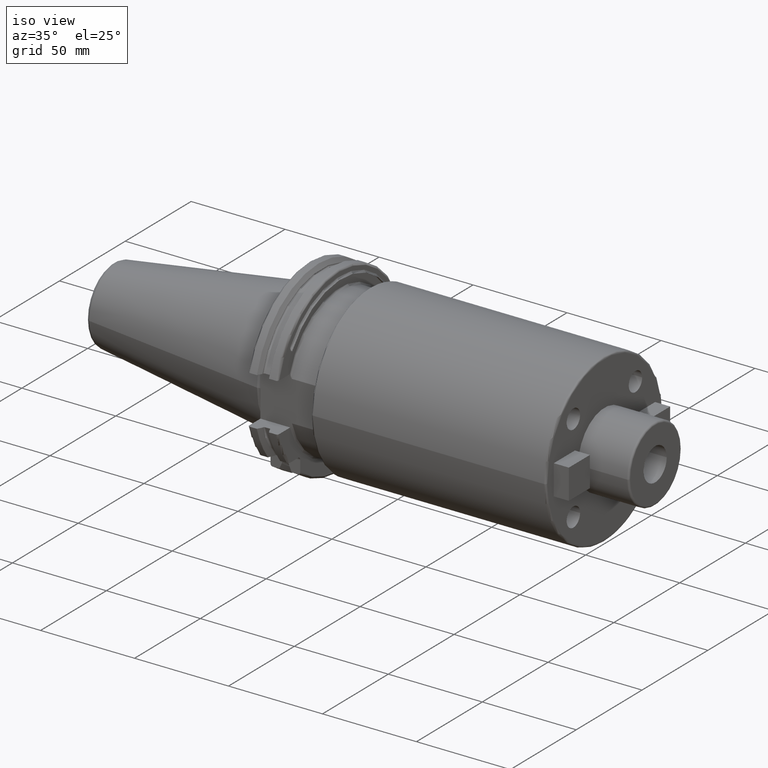
[diagram: clean part render]
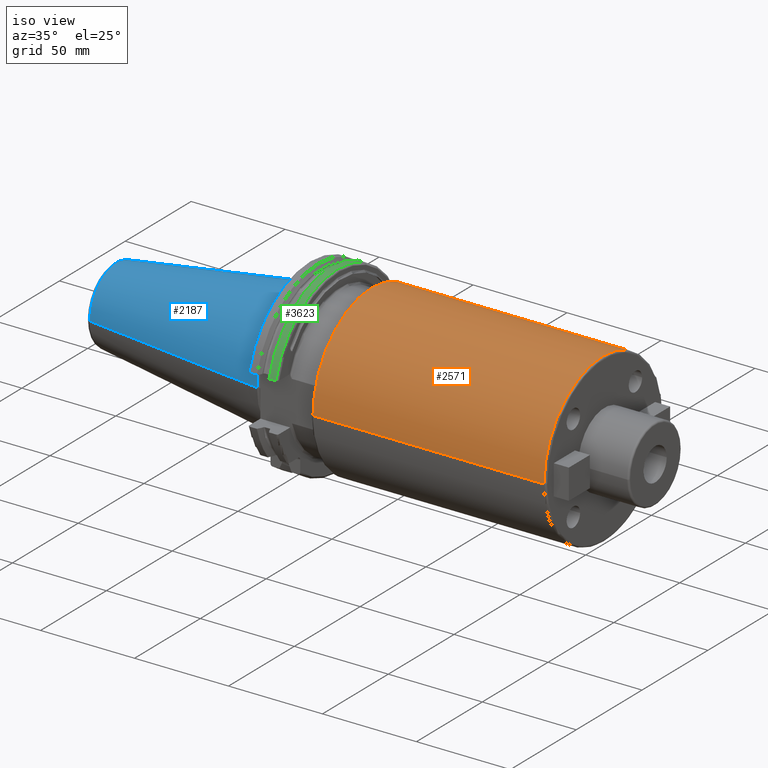
[diagram: same view with three faces highlighted in distinct colors, each labeled with its STEP entity id]
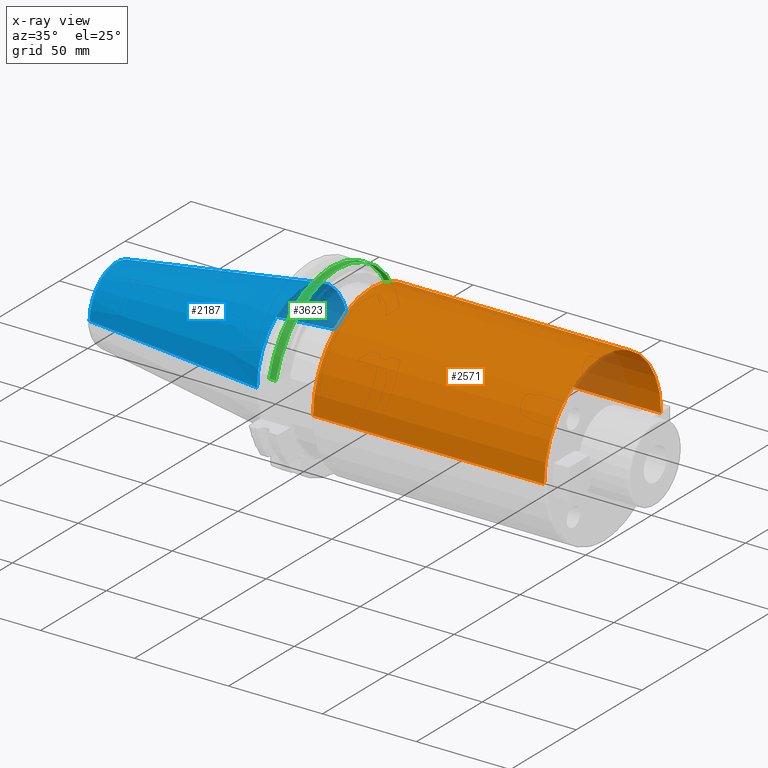
[diagram: x-ray of the same camera — body ghosted, the three highlighted faces saturated]
A machine part, iso view with three faces highlighted in distinct colors.
The next image is the same camera in x-ray (body ghosted, the three faces saturated) — at least one of them is partly hidden behind the body in this view.
Their STEP definitions:

[orange] entity #2571 — the highlighted cylindrical surface (partial cylindrical patch) has radius 44.5 mm, axis along (1, 0, 0).
#407=DIRECTION('',(-1.E0,0.E0,0.E0));
#408=VECTOR('',#407,1.2295E2);
#409=CARTESIAN_POINT('',(1.59E2,-4.45E1,3.168365843636E-13));
#410=LINE('',#409,#408);
#416=DIRECTION('',(-1.E0,0.E0,0.E0));
#417=VECTOR('',#416,1.2295E2);
#418=CARTESIAN_POINT('',(1.59E2,4.45E1,-3.379609737659E-13));
#419=LINE('',#418,#417);
#420=CARTESIAN_POINT('',(3.605E1,0.E0,0.E0));
#421=DIRECTION('',(1.E0,0.E0,0.E0));
#422=DIRECTION('',(0.E0,1.E0,0.E0));
#423=AXIS2_PLACEMENT_3D('',#420,#421,#422);
#425=CARTESIAN_POINT('',(1.59E2,0.E0,0.E0));
#426=DIRECTION('',(-1.E0,0.E0,0.E0));
#427=DIRECTION('',(0.E0,-1.E0,0.E0));
#428=AXIS2_PLACEMENT_3D('',#425,#426,#427);
#1977=CARTESIAN_POINT('',(1.59E2,4.45E1,0.E0));
#1978=CARTESIAN_POINT('',(1.59E2,-4.45E1,-1.089935651241E-14));
#1979=VERTEX_POINT('',#1977);
#1980=VERTEX_POINT('',#1978);
#2079=CARTESIAN_POINT('',(3.605E1,-4.45E1,-1.089935651241E-14));
#2080=CARTESIAN_POINT('',(3.605E1,4.45E1,0.E0));
#2081=VERTEX_POINT('',#2079);
#2082=VERTEX_POINT('',#2080);
#2558=CARTESIAN_POINT('',(1.06525E1,0.E0,0.E0));
#2559=DIRECTION('',(1.E0,0.E0,0.E0));
#2560=DIRECTION('',(0.E0,-1.E0,0.E0));
#2561=AXIS2_PLACEMENT_3D('',#2558,#2559,#2560);
#2562=CYLINDRICAL_SURFACE('',#2561,4.45E1);
#2564=ORIENTED_EDGE('',*,*,#2563,.F.);
#2565=ORIENTED_EDGE('',*,*,#2553,.F.);
#2567=ORIENTED_EDGE('',*,*,#2566,.F.);
#2568=ORIENTED_EDGE('',*,*,#2549,.T.);
#2569=EDGE_LOOP('',(#2564,#2565,#2567,#2568));
#2570=FACE_OUTER_BOUND('',#2569,.F.);
#2571=ADVANCED_FACE('',(#2570),#2562,.T.);
#424=CIRCLE('',#423,4.45E1);
#429=CIRCLE('',#428,4.45E1);
#2549=EDGE_CURVE('',#1980,#2081,#410,.T.);
#2553=EDGE_CURVE('',#1979,#2082,#419,.T.);
#2563=EDGE_CURVE('',#2082,#2081,#424,.T.);
#2566=EDGE_CURVE('',#1980,#1979,#429,.T.);

[blue] entity #2187 — the highlighted conical surface has half-angle 8.298 deg.
#37=CARTESIAN_POINT('',(-9.967471700563E1,0.E0,0.E0));
#38=DIRECTION('',(1.E0,0.E0,0.E0));
#39=DIRECTION('',(0.E0,1.E0,0.E0));
#40=AXIS2_PLACEMENT_3D('',#37,#38,#39);
#42=CARTESIAN_POINT('',(-4.896823332305E-1,0.E0,0.E0));
#43=DIRECTION('',(1.E0,0.E0,0.E0));
#44=DIRECTION('',(0.E0,1.E0,0.E0));
#45=AXIS2_PLACEMENT_3D('',#42,#43,#44);
#47=DIRECTION('',(-9.895312636440E-1,-1.443186691705E-1,0.E0));
#48=VECTOR('',#47,1.002343617797E2);
#49=CARTESIAN_POINT('',(-4.896823332305E-1,3.485358204157E1,0.E0));
#50=LINE('',#49,#48);
#51=DIRECTION('',(-9.895312636440E-1,1.443186691705E-1,0.E0));
#52=VECTOR('',#51,1.002343617797E2);
#53=CARTESIAN_POINT('',(-4.896823332305E-1,-3.485358204157E1,0.E0));
#54=LINE('',#53,#52);
#1763=CARTESIAN_POINT('',(-9.967471700563E1,2.038789234437E1,0.E0));
#1765=VERTEX_POINT('',#1763);
#1767=CARTESIAN_POINT('',(-9.967471700563E1,-2.038789234437E1,0.E0));
#1769=VERTEX_POINT('',#1767);
#1831=CARTESIAN_POINT('',(-4.896823332305E-1,3.485358204157E1,0.E0));
#1832=VERTEX_POINT('',#1831);
#1833=CARTESIAN_POINT('',(-4.896823332305E-1,-3.485358204157E1,0.E0));
#1834=VERTEX_POINT('',#1833);
#2173=CARTESIAN_POINT('',(-5.008219966943E1,0.E0,0.E0));
#2174=DIRECTION('',(1.E0,0.E0,0.E0));
#2175=DIRECTION('',(0.E0,-1.E0,0.E0));
#2176=AXIS2_PLACEMENT_3D('',#2173,#2174,#2175);
#2177=CONICAL_SURFACE('',#2176,2.762073719297E1,8.297826828206E0);
#2179=ORIENTED_EDGE('',*,*,#2178,.F.);
#2181=ORIENTED_EDGE('',*,*,#2180,.T.);
#2183=ORIENTED_EDGE('',*,*,#2182,.T.);
#2184=ORIENTED_EDGE('',*,*,#2166,.F.);
#2185=EDGE_LOOP('',(#2179,#2181,#2183,#2184));
#2186=FACE_OUTER_BOUND('',#2185,.F.);
#2187=ADVANCED_FACE('',(#2186),#2177,.T.);
#41=CIRCLE('',#40,2.038789234437E1);
#46=CIRCLE('',#45,3.485358204157E1);
#2166=EDGE_CURVE('',#1765,#1769,#41,.T.);
#2178=EDGE_CURVE('',#1832,#1765,#50,.T.);
#2180=EDGE_CURVE('',#1832,#1834,#46,.T.);
#2182=EDGE_CURVE('',#1834,#1769,#54,.T.);

[green] entity #3623 — the highlighted cylindrical surface (partial cylindrical patch) has radius 48.7375 mm, axis along (1, 0, 0).
#1212=DIRECTION('',(1.E0,0.E0,0.E0));
#1213=VECTOR('',#1212,3.634621614173E0);
#1214=CARTESIAN_POINT('',(1.441537838583E1,4.699929686974E1,1.29E1));
#1215=LINE('',#1214,#1213);
#1216=CARTESIAN_POINT('',(1.805E1,0.E0,0.E0));
#1217=DIRECTION('',(1.E0,0.E0,0.E0));
#1218=DIRECTION('',(0.E0,9.643354064066E-1,2.646832521159E-1));
#1219=AXIS2_PLACEMENT_3D('',#1216,#1217,#1218);
#1221=DIRECTION('',(1.E0,0.E0,0.E0));
#1222=VECTOR('',#1221,3.634621614173E0);
#1223=CARTESIAN_POINT('',(1.441537838583E1,-4.699929686974E1,1.29E1));
#1224=LINE('',#1223,#1222);
#1225=CARTESIAN_POINT('',(1.441537838583E1,0.E0,0.E0));
#1226=DIRECTION('',(1.E0,0.E0,0.E0));
#1227=DIRECTION('',(0.E0,9.643354064066E-1,2.646832521159E-1));
#1228=AXIS2_PLACEMENT_3D('',#1225,#1226,#1227);
#1244=CARTESIAN_POINT('',(1.441537838583E1,4.699929686974E1,1.29E1));
#1256=CARTESIAN_POINT('',(1.441537838583E1,-4.699929686974E1,1.29E1));
#1871=VERTEX_POINT('',#1244);
#1872=VERTEX_POINT('',#1256);
#1887=CARTESIAN_POINT('',(1.805E1,4.699929686974E1,1.29E1));
#1888=VERTEX_POINT('',#1887);
#1891=CARTESIAN_POINT('',(1.805E1,-4.699929686974E1,1.29E1));
#1892=VERTEX_POINT('',#1891);
#3611=CARTESIAN_POINT('',(-1.076325E2,0.E0,0.E0));
#3612=DIRECTION('',(1.E0,0.E0,0.E0));
#3613=DIRECTION('',(0.E0,-1.E0,0.E0));
#3614=AXIS2_PLACEMENT_3D('',#3611,#3612,#3613);
#3615=CYLINDRICAL_SURFACE('',#3614,4.87375E1);
#3616=ORIENTED_EDGE('',*,*,#3515,.T.);
#3617=ORIENTED_EDGE('',*,*,#3548,.T.);
#3618=ORIENTED_EDGE('',*,*,#3579,.F.);
#3620=ORIENTED_EDGE('',*,*,#3619,.F.);
#3621=EDGE_LOOP('',(#3616,#3617,#3618,#3620));
#3622=FACE_OUTER_BOUND('',#3621,.F.);
#3623=ADVANCED_FACE('',(#3622),#3615,.T.);
#1220=CIRCLE('',#1219,4.87375E1);
#1229=CIRCLE('',#1228,4.87375E1);
#3515=EDGE_CURVE('',#1871,#1888,#1215,.T.);
#3548=EDGE_CURVE('',#1888,#1892,#1220,.T.);
#3579=EDGE_CURVE('',#1872,#1892,#1224,.T.);
#3619=EDGE_CURVE('',#1871,#1872,#1229,.T.);